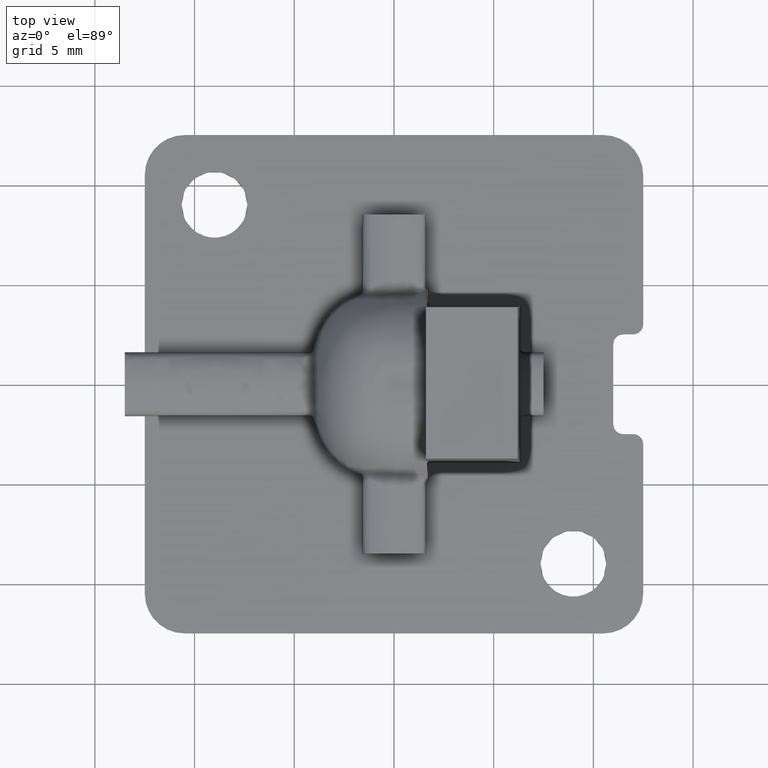
[diagram: clean part render]
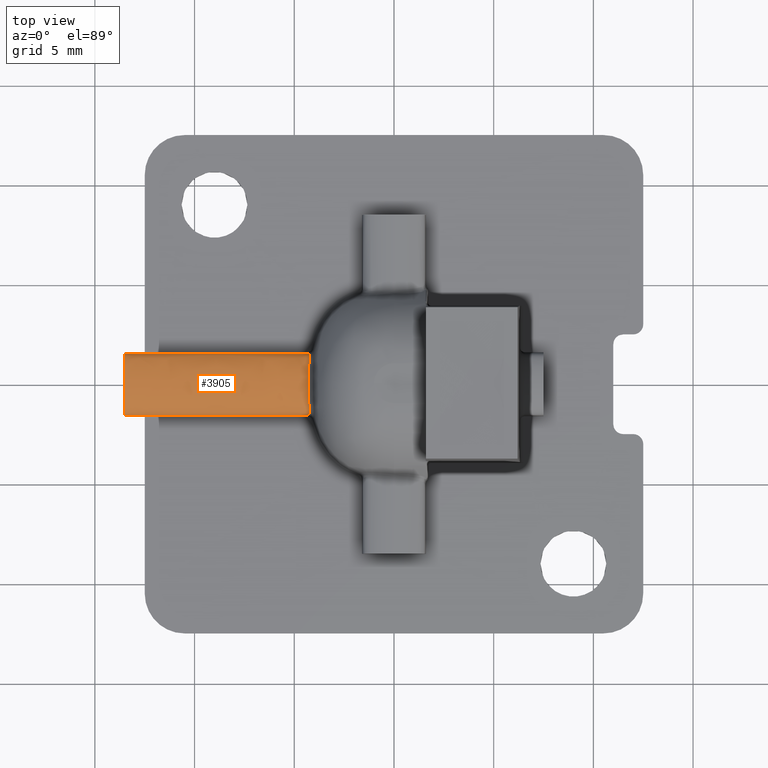
[diagram: same view with one face highlighted and labeled with its STEP entity id]
A machine part, top view. The second image highlights one B-rep face of the part: STEP entity #3905.
In plain terms, the highlighted face is a freeform B-spline surface patch.
Its self-contained STEP definition (entity closure, byte-faithful):
#13 = CARTESIAN_POINT ( 'NONE',  ( -4.199581627227970200, 1.554607376075551700, 1.988017062856057800 ) ) ;
#45 = CARTESIAN_POINT ( 'NONE',  ( -13.50000000000000000, 1.551396557744880100, 2.000000000000000000 ) ) ;
#65 = CARTESIAN_POINT ( 'NONE',  ( -4.199581627227972000, -1.554607375946683900, 1.988017063337006200 ) ) ;
#113 = CARTESIAN_POINT ( 'NONE',  ( -4.255594003967178900, -1.314718902171288000, 2.249988426589723200 ) ) ;
#139 = CARTESIAN_POINT ( 'NONE',  ( -4.298842887274358500, 1.551396557744880100, 2.000000000000000000 ) ) ;
#142 = CARTESIAN_POINT ( 'NONE',  ( -4.276544578246682900, 1.526442547904331300, 2.064786013856968700 ) ) ;
#148 = B_SPLINE_CURVE_WITH_KNOTS ( 'NONE', 3,
 ( #139, #4567, #797, #5156, #1419, #5783, #2065 ),
 .UNSPECIFIED., .F., .F.,
 ( 4, 3, 4 ),
 ( -5.910234360055996100E-008, 0.0000000000000000000, 3.487137816699299600E-007 ),
 .UNSPECIFIED. ) ;
#353 = EDGE_LOOP ( 'NONE', ( #3828, #7464, #6393, #5958, #7086, #424, #3073, #2199 ) ) ;
#424 = ORIENTED_EDGE ( 'NONE', *, *, #1914, .F. ) ;
#457 = VERTEX_POINT ( 'NONE', #3261 ) ;
#675 = CARTESIAN_POINT ( 'NONE',  ( -4.298918253022495900, -1.551500302467941700, 1.999612819422470500 ) ) ;
#714 = CARTESIAN_POINT ( 'NONE',  ( -13.50000000000000000, 1.378850527676533900, 2.643950550859379700 ) ) ;
#734 = CARTESIAN_POINT ( 'NONE',  ( -4.298917999360633700, 1.551500302596871000, 1.999612818941345300 ) ) ;
#774 = CARTESIAN_POINT ( 'NONE',  ( -4.267430892473100800, -0.9829279416447647100, 2.375656800433971800 ) ) ;
#797 = CARTESIAN_POINT ( 'NONE',  ( -4.298850145693635700, 1.551406581089988400, 1.999962592366793600 ) ) ;
#799 = CARTESIAN_POINT ( 'NONE',  ( -4.298842887274358500, 1.551396557744880100, 2.000000000000000000 ) ) ;
#1077 = CARTESIAN_POINT ( 'NONE',  ( -4.298918253022495900, -1.551500302467941700, 1.999612819422470500 ) ) ;
#1304 = CARTESIAN_POINT ( 'NONE',  ( -4.298850399492810200, -1.551406581090375400, 1.999962592365353500 ) ) ;
#1334 = CARTESIAN_POINT ( 'NONE',  ( -13.50000000000000000, -1.378850527676531300, 2.643950550859432100 ) ) ;
#1394 = CARTESIAN_POINT ( 'NONE',  ( -4.291200821357638700, -0.2830717622344538500, 2.482911509250787400 ) ) ;
#1419 = CARTESIAN_POINT ( 'NONE',  ( -4.298875186727429700, 1.551441162529233500, 1.999833532678532400 ) ) ;
#1428 = CARTESIAN_POINT ( 'NONE',  ( -13.50000000000000000, 1.551396557744880100, 2.000000000000000000 ) ) ;
#1496 = CARTESIAN_POINT ( 'NONE',  ( -4.300275292299894600, -1.551430734419887200, 1.999872450912443900 ) ) ;
#1696 = B_SPLINE_SURFACE_WITH_KNOTS ( 'NONE', 3, 1, ( 
 ( #2563, #13 ),
 ( #6883, #3201 ),
 ( #7523, #3855 ),
 ( #45, #4482 ),
 ( #714, #5069 ),
 ( #1334, #5699 ),
 ( #1962, #6311 ),
 ( #2597, #6914 ),
 ( #3225, #7545 ),
 ( #3885, #65 ) ),
 .UNSPECIFIED., .F., .F., .F.,
 ( 4, 3, 3, 4 ),
 ( 2, 2 ),
 ( -0.006202824698237000300, 0.0000000000000000000, 1.000000000000000000, 1.006202824449278900 ),
 ( 0.0000000000000000000, 1.000000000000000000 ),
 .UNSPECIFIED. ) ;
#1914 = EDGE_CURVE ( 'NONE', #5701, #457, #6348, .T. ) ;
#1916 = VERTEX_POINT ( 'NONE', #5164 ) ;
#1923 = B_SPLINE_CURVE_WITH_KNOTS ( 'NONE', 3,
 ( #6929, #2012, #6955, #3270, #7581, #3924, #113, #4543, #774, #5132, #1394, #5759, #2039, #6371, #2657, #6983, #3303, #7611, #3947, #142, #4569, #799 ),
 .UNSPECIFIED., .F., .F.,
 ( 4, 2, 2, 2, 2, 2, 2, 2, 2, 2, 4 ),
 ( -5.999999882477141300E-008, 0.0001076844654015601700, 0.0002154289308019451100, 0.0004309178616027149100, 0.0008618957232042549500, 0.001723851446407335600, 0.002585807169610415400, 0.003016785031211955000, 0.003232273962012725000, 0.003340018427413110300, 0.003447762892813495100 ),
 .UNSPECIFIED. ) ;
#1927 = CARTESIAN_POINT ( 'NONE',  ( -4.298843141077926900, -1.551396557744880700, 1.999999999999999600 ) ) ;
#1962 = CARTESIAN_POINT ( 'NONE',  ( -13.50000000000000000, -1.551396557744881600, 1.999999999999998200 ) ) ;
#2012 = CARTESIAN_POINT ( 'NONE',  ( -4.286244499752250200, -1.542691812282835700, 2.032486552331310000 ) ) ;
#2019 = CARTESIAN_POINT ( 'NONE',  ( -4.303048808472556900, 1.551396557744880100, 2.000000000000000000 ) ) ;
#2031 = VERTEX_POINT ( 'NONE', #7928 ) ;
#2039 = CARTESIAN_POINT ( 'NONE',  ( -4.284125415501971000, 0.5676384175739640500, 2.461634923720512200 ) ) ;
#2065 = CARTESIAN_POINT ( 'NONE',  ( -4.298917999360633700, 1.551500302596871000, 1.999612818941345300 ) ) ;
#2083 = B_SPLINE_CURVE_WITH_KNOTS ( 'NONE', 3,
 ( #2746, #7691, #1496, #5868 ),
 .UNSPECIFIED., .F., .F.,
 ( 4, 4 ),
 ( 0.0000000000000000000, 4.150208960937741700E-006 ),
 .UNSPECIFIED. ) ;
#2199 = ORIENTED_EDGE ( 'NONE', *, *, #2347, .T. ) ;
#2221 = EDGE_CURVE ( 'NONE', #4925, #2298, #5727, .T. ) ;
#2298 = VERTEX_POINT ( 'NONE', #7563 ) ;
#2347 = EDGE_CURVE ( 'NONE', #1916, #3889, #4447, .T. ) ;
#2534 = CARTESIAN_POINT ( 'NONE',  ( -4.303049059560240000, -1.551396557744880700, 1.999999999999999600 ) ) ;
#2563 = CARTESIAN_POINT ( 'NONE',  ( -13.49999999999999800, 1.554607376075551700, 1.988017062856057800 ) ) ;
#2584 = CARTESIAN_POINT ( 'NONE',  ( -13.50000000000000000, 1.551396557744880100, 2.000000000000000000 ) ) ;
#2596 = EDGE_CURVE ( 'NONE', #2031, #3368, #148, .T. ) ;
#2597 = CARTESIAN_POINT ( 'NONE',  ( -13.50000000000000000, -1.552466830478815600, 1.996005687779000700 ) ) ;
#2657 = CARTESIAN_POINT ( 'NONE',  ( -4.260571925181187300, 1.118826735018731800, 2.338809906120364400 ) ) ;
#2746 = CARTESIAN_POINT ( 'NONE',  ( -4.303049059560240000, -1.551396557744880700, 1.999999999999999600 ) ) ;
#2748 = FACE_OUTER_BOUND ( 'NONE', #353, .T. ) ;
#2765 = VECTOR ( 'NONE', #3014, 1000.000000000000000 ) ;
#3014 = DIRECTION ( 'NONE',  ( 1.000000000000000000, 0.0000000000000000000, 0.0000000000000000000 ) ) ;
#3040 = CARTESIAN_POINT ( 'NONE',  ( -4.298917999360633700, 1.551500302596871000, 1.999612818941345300 ) ) ;
#3073 = ORIENTED_EDGE ( 'NONE', *, *, #8097, .T. ) ;
#3201 = CARTESIAN_POINT ( 'NONE',  ( -4.199581627227970200, 1.553537103298661100, 1.992011375237372000 ) ) ;
#3212 = CARTESIAN_POINT ( 'NONE',  ( -13.50000000000000000, 1.378850527676534200, 2.643950550859379200 ) ) ;
#3225 = CARTESIAN_POINT ( 'NONE',  ( -13.50000000000000000, -1.553537103212749800, 1.992011375558003600 ) ) ;
#3248 = CARTESIAN_POINT ( 'NONE',  ( -4.300275039458455200, 1.551430734461776200, 1.999872450756073200 ) ) ;
#3261 = CARTESIAN_POINT ( 'NONE',  ( -4.303048808472556900, 1.551396557744880100, 2.000000000000000000 ) ) ;
#3270 = CARTESIAN_POINT ( 'NONE',  ( -4.264183279958426300, -1.485474604543365100, 2.121060252463020700 ) ) ;
#3303 = CARTESIAN_POINT ( 'NONE',  ( -4.254661010461367400, 1.376902643444764000, 2.215502237362303500 ) ) ;
#3368 = VERTEX_POINT ( 'NONE', #3040 ) ;
#3452 = B_SPLINE_CURVE_WITH_KNOTS ( 'NONE', 3,
 ( #2584, #3212, #7532, #3870 ),
 .UNSPECIFIED., .F., .F.,
 ( 4, 4 ),
 ( 0.0000000000000000000, 0.9999999999999992200 ),
 .UNSPECIFIED. ) ;
#3828 = ORIENTED_EDGE ( 'NONE', *, *, #7101, .T. ) ;
#3855 = CARTESIAN_POINT ( 'NONE',  ( -4.199581627227970200, 1.552466830521770400, 1.996005687618686200 ) ) ;
#3870 = CARTESIAN_POINT ( 'NONE',  ( -13.50000000000000000, -1.551396557744880700, 1.999999999999999600 ) ) ;
#3885 = CARTESIAN_POINT ( 'NONE',  ( -13.50000000000000000, -1.554607375946683900, 1.988017063337006200 ) ) ;
#3889 = VERTEX_POINT ( 'NONE', #2534 ) ;
#3905 = ADVANCED_FACE ( 'NONE', ( #2748 ), #1696, .T. ) ;
#3924 = CARTESIAN_POINT ( 'NONE',  ( -4.254644479120767800, -1.377522327607172200, 2.215168595997945900 ) ) ;
#3947 = CARTESIAN_POINT ( 'NONE',  ( -4.264118328686569400, 1.485145446511305000, 2.121437791332228400 ) ) ;
#4279 = CARTESIAN_POINT ( 'NONE',  ( -13.50000000000000000, 1.551396557744880100, 2.000000000000000000 ) ) ;
#4442 = CARTESIAN_POINT ( 'NONE',  ( -4.298875440479359400, -1.551441162486648400, 1.999833532837466800 ) ) ;
#4447 = LINE ( 'NONE', #7314, #2765 ) ;
#4482 = CARTESIAN_POINT ( 'NONE',  ( -4.199581627227972000, 1.551396557744880100, 2.000000000000000000 ) ) ;
#4543 = CARTESIAN_POINT ( 'NONE',  ( -4.260534264670059900, -1.119610719440608900, 2.338564672532823100 ) ) ;
#4567 = CARTESIAN_POINT ( 'NONE',  ( -4.298846516429700900, 1.551401569420067800, 1.999981296173567000 ) ) ;
#4569 = CARTESIAN_POINT ( 'NONE',  ( -4.286244238832842300, 1.542691812972734300, 2.032486549756567800 ) ) ;
#4600 = B_SPLINE_CURVE_WITH_KNOTS ( 'NONE', 3,
 ( #734, #3248, #5739, #2019 ),
 .UNSPECIFIED., .F., .F.,
 ( 4, 4 ),
 ( 0.0000000000000000000, 4.150211571190370100E-006 ),
 .UNSPECIFIED. ) ;
#4907 = VECTOR ( 'NONE', #5792, 1000.000000000000000 ) ;
#4925 = VERTEX_POINT ( 'NONE', #1077 ) ;
#5038 = CARTESIAN_POINT ( 'NONE',  ( -4.298854028537361300, -1.551411592771023900, 1.999943888518542800 ) ) ;
#5069 = CARTESIAN_POINT ( 'NONE',  ( -4.199581627227972000, 1.378850527676533900, 2.643950550859379700 ) ) ;
#5132 = CARTESIAN_POINT ( 'NONE',  ( -4.284222408342419200, -0.5650954989723511200, 2.462086736678808000 ) ) ;
#5156 = CARTESIAN_POINT ( 'NONE',  ( -4.298853774740385000, 1.551411592770443900, 1.999943888520702400 ) ) ;
#5164 = CARTESIAN_POINT ( 'NONE',  ( -13.50000000000000000, -1.551396557744880700, 1.999999999999999600 ) ) ;
#5353 = EDGE_CURVE ( 'NONE', #3368, #457, #4600, .T. ) ;
#5665 = CARTESIAN_POINT ( 'NONE',  ( -4.298846770231072000, -1.551401569420262300, 1.999981296172846300 ) ) ;
#5699 = CARTESIAN_POINT ( 'NONE',  ( -4.199581627227972000, -1.378850527676531300, 2.643950550859432100 ) ) ;
#5701 = VERTEX_POINT ( 'NONE', #4279 ) ;
#5727 = B_SPLINE_CURVE_WITH_KNOTS ( 'NONE', 3,
 ( #675, #6193, #4442, #5038, #1304, #5665, #1927 ),
 .UNSPECIFIED., .F., .F.,
 ( 4, 3, 4 ),
 ( 0.0000000000000000000, 3.487132650074527100E-007, 4.078156095901095500E-007 ),
 .UNSPECIFIED. ) ;
#5739 = CARTESIAN_POINT ( 'NONE',  ( -4.301665404615491200, 1.551396557744880100, 1.999999999999999600 ) ) ;
#5759 = CARTESIAN_POINT ( 'NONE',  ( -4.291226985382254900, 0.2812528370754576700, 2.483014151620431600 ) ) ;
#5783 = CARTESIAN_POINT ( 'NONE',  ( -4.298896594934134900, 1.551470732471411400, 1.999723176151946900 ) ) ;
#5792 = DIRECTION ( 'NONE',  ( 1.000000000000000000, 0.0000000000000000000, 0.0000000000000000000 ) ) ;
#5816 = EDGE_CURVE ( 'NONE', #2298, #2031, #1923, .T. ) ;
#5868 = CARTESIAN_POINT ( 'NONE',  ( -4.298918253022495900, -1.551500302467941700, 1.999612819422470500 ) ) ;
#5958 = ORIENTED_EDGE ( 'NONE', *, *, #2596, .T. ) ;
#6193 = CARTESIAN_POINT ( 'NONE',  ( -4.298896848641025900, -1.551470732385654500, 1.999723176471975600 ) ) ;
#6311 = CARTESIAN_POINT ( 'NONE',  ( -4.199581627227972000, -1.551396557744881600, 1.999999999999998200 ) ) ;
#6348 = LINE ( 'NONE', #1428, #4907 ) ;
#6371 = CARTESIAN_POINT ( 'NONE',  ( -4.267434643447776600, 0.9827627288130707000, 2.375653727938960000 ) ) ;
#6393 = ORIENTED_EDGE ( 'NONE', *, *, #5816, .T. ) ;
#6883 = CARTESIAN_POINT ( 'NONE',  ( -13.49999999999999800, 1.553537103298661100, 1.992011375237372000 ) ) ;
#6914 = CARTESIAN_POINT ( 'NONE',  ( -4.199581627227972000, -1.552466830478815600, 1.996005687779000700 ) ) ;
#6929 = CARTESIAN_POINT ( 'NONE',  ( -4.298843141077926900, -1.551396557744880700, 1.999999999999999600 ) ) ;
#6955 = CARTESIAN_POINT ( 'NONE',  ( -4.276631798161621300, -1.526615918088046800, 2.064473271060981200 ) ) ;
#6983 = CARTESIAN_POINT ( 'NONE',  ( -4.255604066845573500, 1.313958004862142400, 2.250388715382121200 ) ) ;
#7086 = ORIENTED_EDGE ( 'NONE', *, *, #5353, .T. ) ;
#7101 = EDGE_CURVE ( 'NONE', #3889, #4925, #2083, .T. ) ;
#7314 = CARTESIAN_POINT ( 'NONE',  ( -13.50000000000000000, -1.551396557744880700, 1.999999999999999600 ) ) ;
#7464 = ORIENTED_EDGE ( 'NONE', *, *, #2221, .T. ) ;
#7523 = CARTESIAN_POINT ( 'NONE',  ( -13.49999999999999800, 1.552466830521770400, 1.996005687618686200 ) ) ;
#7532 = CARTESIAN_POINT ( 'NONE',  ( -13.50000000000000000, -1.378850527676529000, 2.643950550859432100 ) ) ;
#7545 = CARTESIAN_POINT ( 'NONE',  ( -4.199581627227972000, -1.553537103212749800, 1.992011375558003600 ) ) ;
#7563 = CARTESIAN_POINT ( 'NONE',  ( -4.298843141077926900, -1.551396557744880700, 1.999999999999999600 ) ) ;
#7581 = CARTESIAN_POINT ( 'NONE',  ( -4.260790264718934000, -1.460445477662197300, 2.146395295345073800 ) ) ;
#7611 = CARTESIAN_POINT ( 'NONE',  ( -4.260692432351720300, 1.459543039734148700, 2.147231921229957800 ) ) ;
#7691 = CARTESIAN_POINT ( 'NONE',  ( -4.301665656573254300, -1.551396557744880700, 1.999999999999999600 ) ) ;
#7928 = CARTESIAN_POINT ( 'NONE',  ( -4.298842887274358500, 1.551396557744880100, 2.000000000000000000 ) ) ;
#8097 = EDGE_CURVE ( 'NONE', #5701, #1916, #3452, .T. ) ;